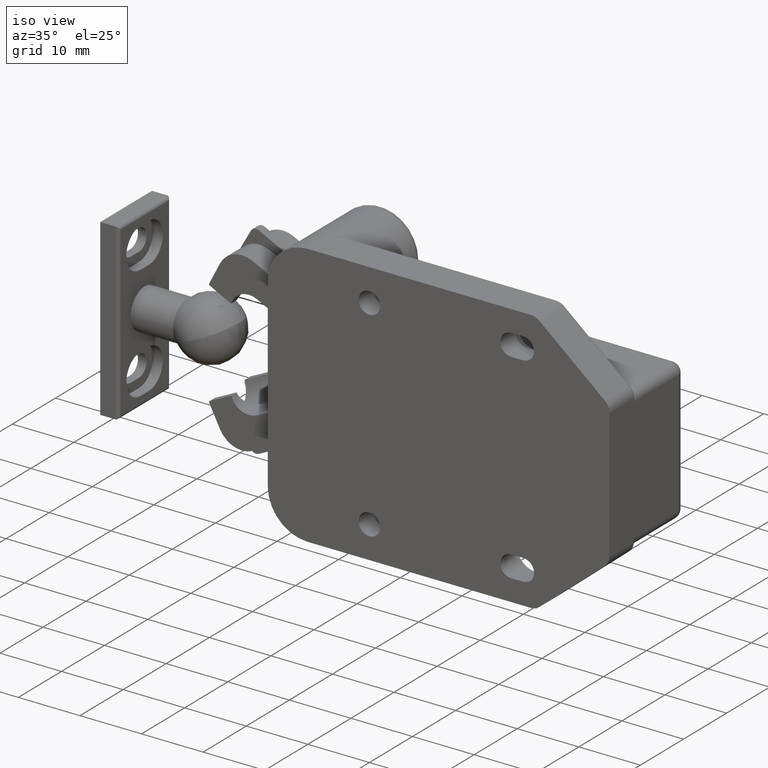
[diagram: clean part render]
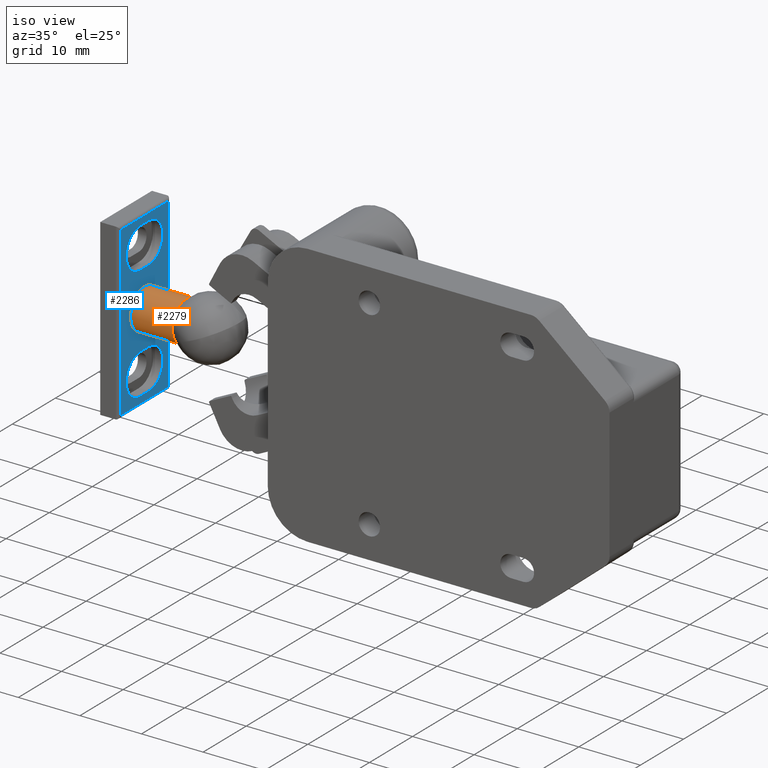
[diagram: same view with the hole feature highlighted: cylindrical wall and planar end face, labeled with their STEP entity ids]
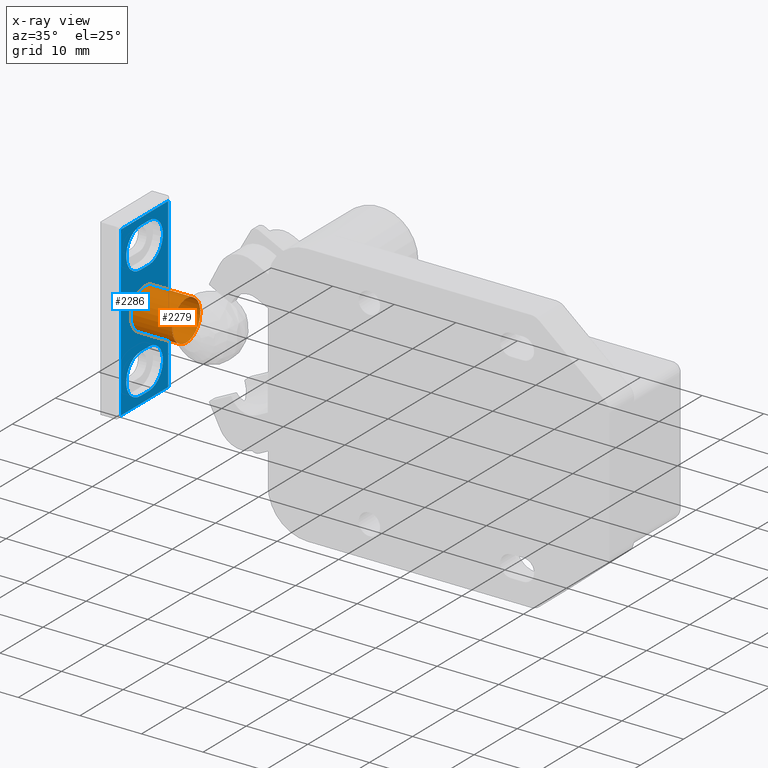
[diagram: x-ray of the same camera — body ghosted, the hole faces saturated]
A machine part, iso view. The highlighted faces form one hole feature of diameter 6.5 mm: the cylindrical wall (entity #2279, orange) and its adjacent planar end face (entity #2286, blue) — they share a circular edge in the B-rep.
The next image is the same camera in x-ray (body ghosted, the hole faces saturated) — the bore reads through the body.
Wall:
#58=FACE_BOUND('',#851,.T.);
#585=CYLINDRICAL_SURFACE('',#2512,3.25);
#700=FACE_OUTER_BOUND('',#850,.T.);
#850=EDGE_LOOP('',(#2028));
#851=EDGE_LOOP('',(#2029));
#976=CIRCLE('',#2509,3.25);
#978=CIRCLE('',#2513,3.25);
#1157=VERTEX_POINT('',#3885);
#1159=VERTEX_POINT('',#3891);
#1454=EDGE_CURVE('',#1157,#1157,#976,.T.);
#1456=EDGE_CURVE('',#1159,#1159,#978,.T.);
#2028=ORIENTED_EDGE('',*,*,#1456,.F.);
#2029=ORIENTED_EDGE('',*,*,#1454,.F.);
#2279=ADVANCED_FACE('',(#700,#58),#585,.T.);
#2509=AXIS2_PLACEMENT_3D('',#3886,#3111,#3112);
#2512=AXIS2_PLACEMENT_3D('',#3890,#3117,#3118);
#2513=AXIS2_PLACEMENT_3D('',#3892,#3119,#3120);
#3111=DIRECTION('center_axis',(-1.58603289232165E-16,1.,0.));
#3112=DIRECTION('ref_axis',(-1.,-1.60128320859398E-16,0.));
#3117=DIRECTION('center_axis',(-1.58603289232165E-16,1.,0.));
#3118=DIRECTION('ref_axis',(-1.,-1.58603289232165E-16,0.));
#3119=DIRECTION('center_axis',(1.83697019872103E-16,-1.,0.));
#3120=DIRECTION('ref_axis',(-1.,-1.58603289232165E-16,0.));
#3885=CARTESIAN_POINT('',(3.25,6.7763018035349,-3.9801020972289E-16));
#3886=CARTESIAN_POINT('Origin',(-1.07474375487049E-15,6.7763018035349,0.));
#3890=CARTESIAN_POINT('Origin',(0.,2.59931283119026E-15,0.));
#3891=CARTESIAN_POINT('',(3.25,3.19632814577459E-15,-3.9801020972289E-16));
#3892=CARTESIAN_POINT('Origin',(-5.63162672931913E-32,2.95438911974538E-15,
0.));
End face:
#59=FACE_BOUND('',#859,.T.);
#60=FACE_BOUND('',#860,.T.);
#61=FACE_BOUND('',#861,.T.);
#129=PLANE('',#2524);
#301=LINE('',#3900,#497);
#302=LINE('',#3905,#498);
#305=LINE('',#3913,#501);
#307=LINE('',#3916,#503);
#313=LINE('',#3932,#509);
#314=LINE('',#3935,#510);
#315=LINE('',#3940,#511);
#316=LINE('',#3943,#512);
#497=VECTOR('',#3126,11.);
#498=VECTOR('',#3131,11.);
#501=VECTOR('',#3140,27.3);
#503=VECTOR('',#3144,27.3);
#509=VECTOR('',#3158,2.);
#510=VECTOR('',#3161,2.);
#511=VECTOR('',#3164,2.);
#512=VECTOR('',#3167,2.);
#707=FACE_OUTER_BOUND('',#858,.T.);
#858=EDGE_LOOP('',(#2054,#2055,#2056,#2057));
#859=EDGE_LOOP('',(#2058));
#860=EDGE_LOOP('',(#2059,#2060,#2061,#2062));
#861=EDGE_LOOP('',(#2063,#2064,#2065,#2066));
#978=CIRCLE('',#2513,3.25);
#979=CIRCLE('',#2525,3.25);
#980=CIRCLE('',#2526,3.25);
#981=CIRCLE('',#2527,3.25);
#982=CIRCLE('',#2528,3.25);
#1159=VERTEX_POINT('',#3891);
#1162=VERTEX_POINT('',#3897);
#1163=VERTEX_POINT('',#3899);
#1164=VERTEX_POINT('',#3903);
#1165=VERTEX_POINT('',#3904);
#1171=VERTEX_POINT('',#3928);
#1172=VERTEX_POINT('',#3929);
#1173=VERTEX_POINT('',#3931);
#1174=VERTEX_POINT('',#3933);
#1175=VERTEX_POINT('',#3936);
#1176=VERTEX_POINT('',#3937);
#1177=VERTEX_POINT('',#3939);
#1178=VERTEX_POINT('',#3941);
#1456=EDGE_CURVE('',#1159,#1159,#978,.T.);
#1459=EDGE_CURVE('',#1162,#1163,#301,.T.);
#1461=EDGE_CURVE('',#1164,#1165,#302,.T.);
#1466=EDGE_CURVE('',#1165,#1162,#305,.T.);
#1468=EDGE_CURVE('',#1163,#1164,#307,.T.);
#1474=EDGE_CURVE('',#1171,#1172,#979,.T.);
#1475=EDGE_CURVE('',#1172,#1173,#313,.T.);
#1476=EDGE_CURVE('',#1173,#1174,#980,.T.);
#1477=EDGE_CURVE('',#1174,#1171,#314,.T.);
#1478=EDGE_CURVE('',#1175,#1176,#981,.T.);
#1479=EDGE_CURVE('',#1176,#1177,#315,.T.);
#1480=EDGE_CURVE('',#1177,#1178,#982,.T.);
#1481=EDGE_CURVE('',#1178,#1175,#316,.T.);
#2054=ORIENTED_EDGE('',*,*,#1461,.F.);
#2055=ORIENTED_EDGE('',*,*,#1468,.F.);
#2056=ORIENTED_EDGE('',*,*,#1459,.F.);
#2057=ORIENTED_EDGE('',*,*,#1466,.F.);
#2058=ORIENTED_EDGE('',*,*,#1456,.T.);
#2059=ORIENTED_EDGE('',*,*,#1474,.T.);
#2060=ORIENTED_EDGE('',*,*,#1475,.T.);
#2061=ORIENTED_EDGE('',*,*,#1476,.T.);
#2062=ORIENTED_EDGE('',*,*,#1477,.T.);
#2063=ORIENTED_EDGE('',*,*,#1478,.T.);
#2064=ORIENTED_EDGE('',*,*,#1479,.T.);
#2065=ORIENTED_EDGE('',*,*,#1480,.T.);
#2066=ORIENTED_EDGE('',*,*,#1481,.T.);
#2286=ADVANCED_FACE('',(#707,#59,#60,#61),#129,.T.);
#2513=AXIS2_PLACEMENT_3D('',#3892,#3119,#3120);
#2524=AXIS2_PLACEMENT_3D('',#3927,#3154,#3155);
#2525=AXIS2_PLACEMENT_3D('',#3930,#3156,#3157);
#2526=AXIS2_PLACEMENT_3D('',#3934,#3159,#3160);
#2527=AXIS2_PLACEMENT_3D('',#3938,#3162,#3163);
#2528=AXIS2_PLACEMENT_3D('',#3942,#3165,#3166);
#3119=DIRECTION('center_axis',(1.83697019872103E-16,-1.,0.));
#3120=DIRECTION('ref_axis',(-1.,-1.58603289232165E-16,0.));
#3126=DIRECTION('',(0.,0.,-1.));
#3131=DIRECTION('',(0.,0.,1.));
#3140=DIRECTION('',(-1.,-1.83697019872103E-16,0.));
#3144=DIRECTION('',(1.,1.83697019872103E-16,0.));
#3154=DIRECTION('center_axis',(-1.83697019872103E-16,1.,0.));
#3155=DIRECTION('ref_axis',(-1.,-1.83697019872103E-16,0.));
#3156=DIRECTION('center_axis',(1.83697019872103E-16,-1.,0.));
#3157=DIRECTION('ref_axis',(-1.,0.,1.02482125350014E-15));
#3158=DIRECTION('',(-1.11022302462516E-15,-2.03944661017034E-31,-1.));
#3159=DIRECTION('center_axis',(1.83697019872103E-16,-1.,0.));
#3160=DIRECTION('ref_axis',(1.,0.,-1.36642833800019E-15));
#3161=DIRECTION('',(1.11022302462516E-15,2.03944661017034E-31,1.));
#3162=DIRECTION('center_axis',(1.83697019872103E-16,-1.,0.));
#3163=DIRECTION('ref_axis',(1.,0.,1.02482125350014E-15));
#3164=DIRECTION('',(1.11022302462516E-15,2.03944661017034E-31,-1.));
#3165=DIRECTION('center_axis',(1.83697019872103E-16,-1.,0.));
#3166=DIRECTION('ref_axis',(-1.,0.,-1.36642833800019E-15));
#3167=DIRECTION('',(-1.11022302462516E-15,-2.03944661017034E-31,1.));
#3891=CARTESIAN_POINT('',(3.25,3.19632814577459E-15,-3.9801020972289E-16));
#3892=CARTESIAN_POINT('Origin',(-5.63162672931913E-32,2.95438911974538E-15,
0.));
#3897=CARTESIAN_POINT('',(-13.65,6.93889390390723E-17,5.5));
#3899=CARTESIAN_POINT('',(-13.65,7.86598493387142E-17,-5.5));
#3900=CARTESIAN_POINT('',(-13.65,6.93889390390723E-17,0.));
#3903=CARTESIAN_POINT('',(13.65,5.13478148889135E-15,-5.5));
#3904=CARTESIAN_POINT('',(13.65,5.09358849184713E-15,5.5));
#3905=CARTESIAN_POINT('',(13.65,5.13478148889135E-15,0.));
#3913=CARTESIAN_POINT('',(7.075,3.88578058618805E-15,5.5));
#3916=CARTESIAN_POINT('',(7.075,3.88578058618805E-15,-5.5));
#3927=CARTESIAN_POINT('Origin',(14.15,5.19862566238051E-15,0.));
#3928=CARTESIAN_POINT('',(-6.,1.49713071195764E-15,0.999999999999995));
#3929=CARTESIAN_POINT('',(-12.5,3.0310008278897E-16,1.));
#3930=CARTESIAN_POINT('Origin',(-9.25,5.19862566238051E-15,1.));
#3931=CARTESIAN_POINT('',(-12.5,3.03100082788969E-16,-0.999999999999996));
#3932=CARTESIAN_POINT('',(-12.5,3.0310008278897E-16,0.500000000000016));
#3933=CARTESIAN_POINT('',(-6.,1.49713071195764E-15,-1.));
#3934=CARTESIAN_POINT('Origin',(-9.25,5.19862566238051E-15,-1.));
#3935=CARTESIAN_POINT('',(-6.,1.49713071195764E-15,-0.499999999999991));
#3936=CARTESIAN_POINT('',(12.5,3.0310008278897E-16,1.));
#3937=CARTESIAN_POINT('',(6.,1.49713071195764E-15,0.999999999999995));
#3938=CARTESIAN_POINT('Origin',(9.25,5.19862566238051E-15,1.));
#3939=CARTESIAN_POINT('',(6.,1.49713071195764E-15,-1.));
#3940=CARTESIAN_POINT('',(6.,3.70149495042288E-15,-0.500000000000007));
#3941=CARTESIAN_POINT('',(12.5,3.03100082788969E-16,-0.999999999999996));
#3942=CARTESIAN_POINT('Origin',(9.25,5.19862566238051E-15,-1.));
#3943=CARTESIAN_POINT('',(12.5,4.89552557959154E-15,0.500000000000001));